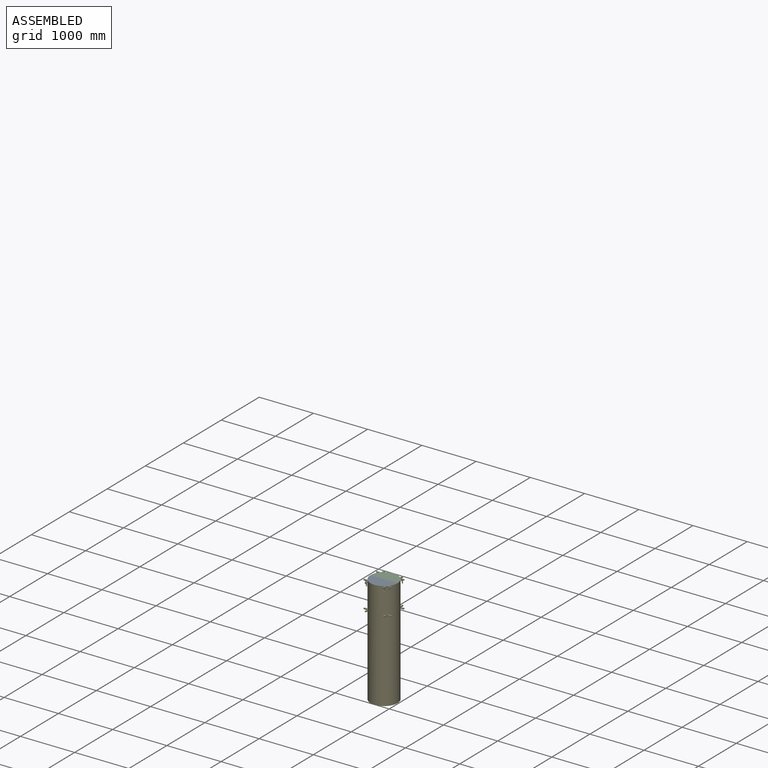
[diagram: assembled view]
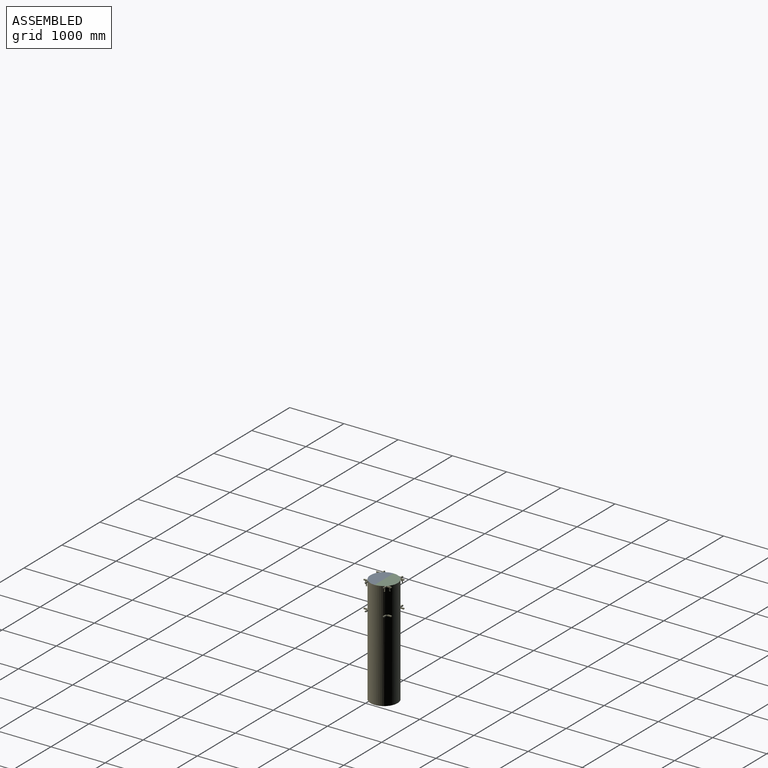
[diagram: assembled view, second angle]
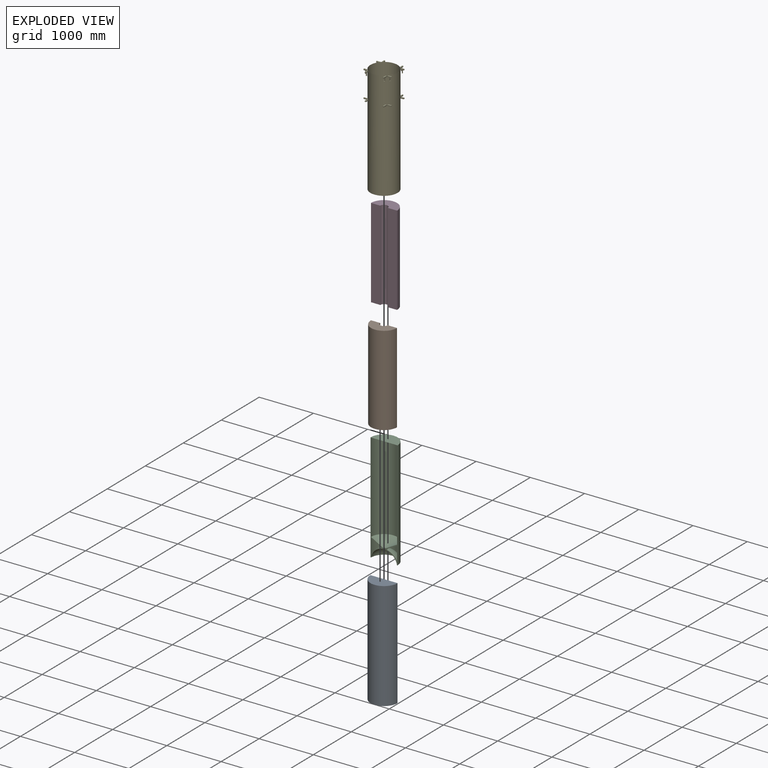
[diagram: exploded view]
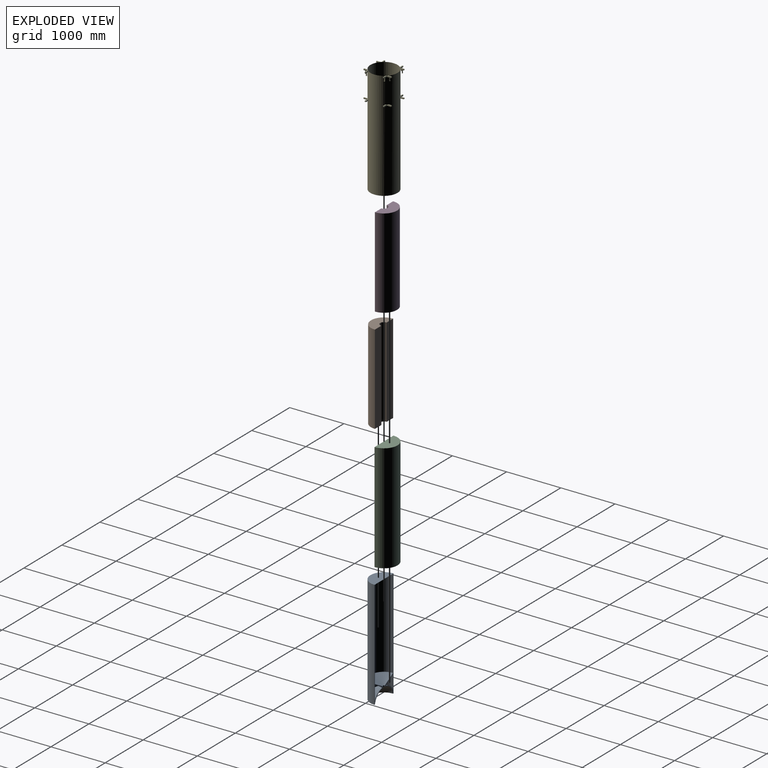
[diagram: exploded view, second angle]
ASSEMBLY  parts=5 mates=5
PART A: 13 faces, bbox 499x249.5x2000 mm
  f0: plane 2000x499mm, normal (0,-1,0), area 54441.9mm2, adj f1,f2,f3,f4,f5,f6,f7,f8
  f1: plane 499x249.5mm, normal (0,0,-1), area 7304.6mm2, adj f0,f4,f8
  f2: plane 499x249.5mm, normal (0,0,1), area 97782.5mm2, adj f0,f8
  f3: cylinder r=20mm len=40mm, axis (0,0,1), area 1256.6mm2, adj f0,f4,f5
  f4: sphere r=244mm, area 152680.3mm2, adj f0,f1,f3
  f5: cone r=20mm half-angle=60.4deg, axis (0,0,1), area 103339.9mm2, adj f0,f3,f6
  f6: cylinder r=240mm len=1654.82mm, axis (0,0,-1), area 1247705.7mm2, adj f0,f5,f7
  f7: plane 480x240mm, normal (0,0,-1), area 90477.9mm2, adj f0,f6
  f8: cylinder r=249.5mm len=2000mm, axis (0,0,1), area 1567654.7mm2, adj f0,f1,f2
  f9: cone r=52.51mm half-angle=59.8deg, axis (0,0,1), area 99633.5mm2, adj f0,f10,f12
  f10: cylinder r=52.51mm len=105.01mm, axis (0,0,1), area 1951.3mm2, adj f0,f9,f11
  f11: revolved ~480x240mm, area 130208.8mm2, adj f0,f10,f12
  f12: cylinder r=240mm len=480mm, axis (0,0,1), area 211115mm2, adj f0,f9,f11
PART B: 6 faces, bbox 480x240x1655 mm
  f0: plane 1655x170mm, normal (0,1,0), area 281350mm2, adj f2,f3,f4,f5
  f1: plane 1655x170mm, normal (0,1,0), area 281350mm2, adj f2,f3,f4,f5
  f2: cylinder r=240mm len=1655mm, axis (0,0,1), area 1247840.6mm2, adj f0,f1,f3,f4
  f3: plane 480x240mm, normal (0,0,-1), area 82781mm2, adj f0,f1,f2,f5
  f4: plane 480x240mm, normal (0,0,1), area 82781mm2, adj f0,f1,f2,f5
  f5: cylinder r=70mm len=1655mm, axis (0,0,1), area 363953.5mm2, adj f0,f1,f3,f4
PART C: same geometry as A
PART D: 6 faces, bbox 480x240x1655 mm
  f0: plane 1655x170mm, normal (0,-1,0), area 281350mm2, adj f2,f3,f4,f5
  f1: plane 1655x170mm, normal (0,-1,0), area 281350mm2, adj f2,f3,f4,f5
  f2: cylinder r=240mm len=1655mm, axis (0,0,1), area 1247840.6mm2, adj f0,f1,f3,f4
  f3: plane 480x240mm, normal (0,0,-1), area 82781mm2, adj f0,f1,f2,f5
  f4: plane 480x240mm, normal (0,0,1), area 82781mm2, adj f0,f1,f2,f5
  f5: cylinder r=70mm len=1655mm, axis (0,0,1), area 363953.5mm2, adj f0,f1,f3,f4
PART E: 180 faces, bbox 510x510x2000 mm
  f0: plane 30x4mm, normal (0,0,-1), area 120mm2, adj f27,f83,f126,f127
  f1: plane 30x4mm, normal (0,0,-1), area 120mm2, adj f27,f53,f124,f127
  f2: plane 30x4mm, normal (0,0,-1), area 120mm2, adj f32,f77,f114,f115
  f3: plane 30x4mm, normal (0,0,-1), area 120mm2, adj f32,f74,f113,f115
  f4: plane 43.22x20mm, normal (0,0,-1), area 678.4mm2, adj f46,f49,f87,f173
  f5: plane 30x4mm, normal (0,0,-1), area 120mm2, adj f33,f46,f109,f111
  f6: plane 30x4mm, normal (0,0,-1), area 120mm2, adj f84,f90,f130,f131
  f7: plane 30x4mm, normal (0,0,-1), area 120mm2, adj f70,f90,f129,f131
  f8: plane 30x4mm, normal (0,0,-1), area 120mm2, adj f39,f81,f97,f99
  f9: plane 30x4mm, normal (0,0,-1), area 120mm2, adj f39,f51,f98,f99
  f10: plane 30x4mm, normal (0,0,-1), area 120mm2, adj f20,f86,f148,f151
  f11: plane 30x4mm, normal (0,0,-1), area 120mm2, adj f20,f57,f150,f151
  f12: plane 30x4mm, normal (0,0,-1), area 120mm2, adj f85,f89,f141,f143
  f13: plane 30x4mm, normal (0,0,-1), area 120mm2, adj f55,f89,f142,f143
  f14: plane 30x4mm, normal (0,0,-1), area 120mm2, adj f40,f80,f94,f95
  f15: plane 30x4mm, normal (0,0,-1), area 120mm2, adj f40,f72,f93,f95
  f16: plane 43.22x20mm, normal (0,0,-1), area 678.4mm2, adj f55,f85,f87,f161
  f17: plane 78.22x20mm, normal (0,0,-1), area 1018.4mm2, adj f21,f47,f56,f87,f144,f146,f147
  f18: plane 78.22x20mm, normal (0,0,-1), area 1018.4mm2, adj f19,f48,f58,f87,f152,f154,f155
  f19: plane 20x20mm, normal (0,1,0), area 223.5mm2, adj f18,f48,f58,f60,f152,f153,f154
  f20: plane 20x20mm, normal (0,1,0), area 223.5mm2, adj f10,f11,f57,f61,f86,f148,f149,f150
  f21: plane 20x20mm, normal (0,1,0), area 223.5mm2, adj f17,f47,f56,f64,f144,f145,f146
  f22: plane 43.22x20mm, normal (0,0,-1), area 678.4mm2, adj f53,f83,f87,f179
  f23: plane 78.22x20mm, normal (0,0,-1), area 1018.4mm2, adj f26,f41,f69,f87,f132,f134,f135
  f24: plane 78.22x20mm, normal (0,0,-1), area 1018.4mm2, adj f25,f42,f54,f87,f136,f138,f139
  f25: plane 20x20mm, normal (-1,0,0), area 223.5mm2, adj f24,f42,f54,f63,f136,f137,f138
  f26: plane 20x20mm, normal (-1,0,0), area 223.5mm2, adj f23,f41,f59,f69,f132,f133,f134
  f27: plane 20x20mm, normal (-1,0,0), area 223.5mm2, adj f0,f1,f53,f61,f83,f124,f125,f126
  f28: plane 78.22x20mm, normal (0,0,-1), area 1018.4mm2, adj f31,f45,f50,f87,f117,f118,f119
  f29: plane 78.22x20mm, normal (0,0,-1), area 1018.4mm2, adj f30,f73,f78,f87,f121,f122,f123
  f30: plane 20x20mm, normal (1,0,0), area 223.5mm2, adj f29,f67,f73,f78,f120,f121,f122
  f31: plane 20x20mm, normal (1,0,0), area 223.5mm2, adj f28,f45,f50,f66,f116,f117,f118
  f32: plane 20x20mm, normal (1,0,0), area 223.5mm2, adj f2,f3,f61,f74,f77,f112,f113,f114
  f33: plane 20x20mm, normal (1,0,0), area 223.5mm2, adj f5,f46,f49,f61,f75,f108,f109,f110
  f34: plane 43.22x20mm, normal (0,0,-1), area 678.4mm2, adj f51,f81,f87,f167
  f35: plane 78.22x20mm, normal (0,0,-1), area 1018.4mm2, adj f38,f43,f52,f87,f101,f102,f103
  f36: plane 78.22x20mm, normal (0,0,-1), area 1018.5mm2, adj f37,f44,f71,f87,f105,f106,f107
  f37: plane 20x20mm, normal (0,-1,0), area 223.5mm2, adj f36,f44,f68,f71,f104,f105,f106
  f38: plane 20x20mm, normal (0,-1,0), area 223.5mm2, adj f35,f43,f52,f82,f100,f101,f102
  f39: plane 20x20mm, normal (0,-1,0), area 223.5mm2, adj f8,f9,f51,f61,f81,f96,f97,f98
  f40: plane 20x20mm, normal (0,-1,0), area 223.5mm2, adj f14,f15,f61,f72,f80,f92,f93,f94
  f41: plane 60.27x20mm, normal (0,-1,0), area 1205.3mm2, adj f23,f26,f59,f87
  f42: plane 60.27x20mm, normal (0,1,0), area 1205.3mm2, adj f24,f25,f63,f87
  f43: plane 60.27x20mm, normal (-1,0,0), area 1205.3mm2, adj f35,f38,f82,f87
  f44: plane 60.27x20mm, normal (1,0,0), area 1205.3mm2, adj f36,f37,f68,f87
  f45: plane 60.27x20mm, normal (0,-1,0), area 1205.3mm2, adj f28,f31,f66,f87
  f46: plane 75x60.27mm, normal (0,-1,0), area 1495.3mm2, adj f4,f5,f33,f61,f87,f111,f171,f172
  f47: plane 60.27x20mm, normal (1,0,0), area 1205.3mm2, adj f17,f21,f64,f87
  f48: plane 60.27x20mm, normal (-1,0,0), area 1205.3mm2, adj f18,f19,f60,f87
  f49: plane 78.22x75mm, normal (0,1,0), area 1854.5mm2, adj f4,f33,f57,f61,f75,f111,f171,f172
  f50: plane 78.22x20mm, normal (0,1,0), area 1564.5mm2, adj f28,f31,f58,f66
  f51: plane 78.22x75mm, normal (1,0,0), area 1854.5mm2, adj f9,f34,f39,f61,f74,f99,f165,f166
  f52: plane 78.22x20mm, normal (1,0,0), area 1564.5mm2, adj f35,f38,f73,f82
  f53: plane 78.22x75mm, normal (0,-1,0), area 1854.5mm2, adj f1,f22,f27,f61,f72,f127,f177,f178
  f54: plane 78.22x20mm, normal (0,-1,0), area 1564.5mm2, adj f24,f25,f63,f71
  f55: plane 78.22x75mm, normal (-1,0,0), area 1854.5mm2, adj f13,f16,f61,f70,f89,f143,f159,f160
  f56: plane 78.22x20mm, normal (-1,0,0), area 1564.5mm2, adj f17,f21,f64,f69
  f57: plane 78.22x75mm, normal (1,0,0), area 1854.5mm2, adj f11,f20,f49,f61,f65,f151,f162,f163
  f58: plane 78.22x20mm, normal (1,0,0), area 1564.5mm2, adj f18,f19,f50,f60
  f59: plane 78.22x20mm, normal (0,0,1), area 1378.4mm2, adj f26,f41,f69,f87
  f60: plane 78.22x20mm, normal (0,0,1), area 1378.4mm2, adj f19,f48,f58,f87
  f61: plane 510x510mm, normal (0,0,1), area 11812mm2, adj f20,f27,f32,f33,f39,f40,f46,f49
  f62: plane 43.22x20mm, normal (0,0,-1), area 678.4mm2, adj f70,f84,f87,f170
  f63: plane 78.22x20mm, normal (0,0,1), area 1378.4mm2, adj f25,f42,f54,f87
  f64: plane 78.22x20mm, normal (0,0,1), area 1378.4mm2, adj f21,f47,f56,f87
  f65: plane 43.22x20mm, normal (0,0,-1), area 678.4mm2, adj f57,f86,f87,f164
  f66: plane 78.22x20mm, normal (0,0,1), area 1378.4mm2, adj f31,f45,f50,f87
  f67: plane 78.22x20mm, normal (0,0,1), area 1378.4mm2, adj f30,f73,f78,f87
  f68: plane 78.22x20mm, normal (0,0,1), area 1378.4mm2, adj f37,f44,f71,f87
  f69: plane 78.22x20mm, normal (0,1,0), area 1564.5mm2, adj f23,f26,f56,f59
  f70: plane 78.22x75mm, normal (0,1,0), area 1854.5mm2, adj f7,f55,f61,f62,f90,f131,f168,f169
  f71: plane 78.22x20mm, normal (-1,0,0), area 1564.5mm2, adj f36,f37,f54,f68
  f72: plane 78.22x75mm, normal (-1,0,0), area 1854.5mm2, adj f15,f40,f53,f61,f79,f95,f156,f157
  f73: plane 78.22x20mm, normal (0,-1,0), area 1564.5mm2, adj f29,f30,f52,f67
  f74: plane 78.22x75mm, normal (0,-1,0), area 1854.5mm2, adj f3,f32,f51,f61,f76,f115,f174,f175
  f75: plane 30x4mm, normal (0,0,-1), area 120mm2, adj f33,f49,f110,f111
  f76: plane 43.22x20mm, normal (0,0,-1), area 678.4mm2, adj f74,f77,f87,f176
  f77: plane 75x60.27mm, normal (0,1,0), area 1495.3mm2, adj f2,f32,f61,f76,f87,f115,f174,f175
  f78: plane 60.27x20mm, normal (0,1,0), area 1205.3mm2, adj f29,f30,f67,f87
  f79: plane 43.22x20mm, normal (0,0,-1), area 678.4mm2, adj f72,f80,f87,f158
  f80: plane 75x60.27mm, normal (1,0,0), area 1495.3mm2, adj f14,f40,f61,f79,f87,f95,f156,f157
  f81: plane 75x60.27mm, normal (-1,0,0), area 1495.3mm2, adj f8,f34,f39,f61,f87,f99,f165,f166
  f82: plane 78.22x20mm, normal (0,0,1), area 1378.4mm2, adj f38,f43,f52,f87
  f83: plane 75x60.27mm, normal (0,1,0), area 1495.3mm2, adj f0,f22,f27,f61,f87,f127,f177,f178
  f84: plane 75x60.27mm, normal (0,-1,0), area 1495.3mm2, adj f6,f61,f62,f87,f90,f131,f168,f169
  f85: plane 75x60.27mm, normal (1,0,0), area 1495.3mm2, adj f12,f16,f61,f87,f89,f143,f159,f160
  f86: plane 75x60.27mm, normal (-1,0,0), area 1495.3mm2, adj f10,f20,f61,f65,f87,f151,f162,f163
  f87: cylinder r=250mm len=2000mm, axis (0,0,-1), area 3132987.5mm2, adj f4,f16,f17,f18,f22,f23,f24,f28
  f88: plane 500x500mm, normal (0,0,-1), area 784.6mm2, adj f87,f91
  f89: plane 20x20mm, normal (0,1,0), area 223.5mm2, adj f12,f13,f55,f61,f85,f140,f141,f142
  f90: plane 20x20mm, normal (-1,0,0), area 223.5mm2, adj f6,f7,f61,f70,f84,f128,f129,f130
  f91: cylinder r=249.5mm len=2000mm, axis (0,0,1), area 3135309.5mm2, adj f61,f88
  f92: cylinder r=6mm len=30mm, axis (0,-1,0), area 565.5mm2, adj f40,f93,f94,f95
  f93: plane 30x10mm, normal (1,0,0), area 300mm2, adj f15,f40,f92,f95
  f94: plane 30x10mm, normal (-1,0,0), area 300mm2, adj f14,f40,f92,f95
  f95: plane 66x20mm, normal (0,-1,0), area 1176.5mm2, adj f14,f15,f72,f80,f92,f93,f94,f157
  f96: cylinder r=6mm len=30mm, axis (0,-1,0), area 565.5mm2, adj f39,f97,f98,f99
  f97: plane 30x10mm, normal (1,0,0), area 300mm2, adj f8,f39,f96,f99
  f98: plane 30x10mm, normal (-1,0,0), area 300mm2, adj f9,f39,f96,f99
  f99: plane 66x20mm, normal (0,-1,0), area 1176.5mm2, adj f8,f9,f51,f81,f96,f97,f98,f165
  f100: cylinder r=6mm len=30mm, axis (0,-1,0), area 565.5mm2, adj f38,f101,f102,f103
  f101: plane 30x10mm, normal (1,0,0), area 300mm2, adj f35,f38,f100,f103
  f102: plane 30x10mm, normal (-1,0,0), area 300mm2, adj f35,f38,f100,f103
  f103: plane 16x12mm, normal (0,-1,0), area 176.5mm2, adj f35,f100,f101,f102
  f104: cylinder r=6mm len=30mm, axis (0,-1,0), area 572mm2, adj f37,f105,f106,f107
  f105: plane 30x9.89mm, normal (1,0,0), area 296.8mm2, adj f36,f37,f104,f107
  f106: plane 30x9.89mm, normal (-1,0,0), area 296.8mm2, adj f36,f37,f104,f107
  f107: plane 16x12mm, normal (0,-1,0), area 176.5mm2, adj f36,f104,f105,f106
  f108: cylinder r=6mm len=30mm, axis (1,0,0), area 565.5mm2, adj f33,f109,f110,f111
  f109: plane 30x10mm, normal (0,1,0), area 300mm2, adj f5,f33,f108,f111
  f110: plane 30x10mm, normal (0,-1,0), area 300mm2, adj f33,f75,f108,f111
  f111: plane 66x20mm, normal (1,0,0), area 1176.5mm2, adj f5,f46,f49,f75,f108,f109,f110,f171
  f112: cylinder r=6mm len=30mm, axis (1,0,0), area 565.5mm2, adj f32,f113,f114,f115
  f113: plane 30x10mm, normal (0,1,0), area 300mm2, adj f3,f32,f112,f115
  f114: plane 30x10mm, normal (0,-1,0), area 300mm2, adj f2,f32,f112,f115
  f115: plane 66x20mm, normal (1,0,0), area 1176.5mm2, adj f2,f3,f74,f77,f112,f113,f114,f175
  f116: cylinder r=6mm len=30mm, axis (1,0,0), area 565.5mm2, adj f31,f117,f118,f119
  f117: plane 30x10mm, normal (0,1,0), area 300mm2, adj f28,f31,f116,f119
  f118: plane 30x10mm, normal (0,-1,0), area 300mm2, adj f28,f31,f116,f119
  f119: plane 16x12mm, normal (1,0,0), area 176.5mm2, adj f28,f116,f117,f118
  f120: cylinder r=6mm len=30mm, axis (1,0,0), area 565.5mm2, adj f30,f121,f122,f123
  f121: plane 30x10mm, normal (0,1,0), area 300mm2, adj f29,f30,f120,f123
  f122: plane 30x10mm, normal (0,-1,0), area 300mm2, adj f29,f30,f120,f123
  f123: plane 16x12mm, normal (1,0,0), area 176.5mm2, adj f29,f120,f121,f122
  f124: plane 30x10mm, normal (0,1,0), area 300mm2, adj f1,f27,f125,f127
  f125: cylinder r=6mm len=30mm, axis (-1,0,0), area 565.5mm2, adj f27,f124,f126,f127
  f126: plane 30x10mm, normal (0,-1,0), area 300mm2, adj f0,f27,f125,f127
  f127: plane 66x20mm, normal (-1,0,0), area 1176.5mm2, adj f0,f1,f53,f83,f124,f125,f126,f177
  f128: cylinder r=6mm len=30mm, axis (-1,0,0), area 565.5mm2, adj f90,f129,f130,f131
  f129: plane 30x10mm, normal (0,-1,0), area 300mm2, adj f7,f90,f128,f131
  f130: plane 30x10mm, normal (0,1,0), area 300mm2, adj f6,f90,f128,f131
  f131: plane 66x20mm, normal (-1,0,0), area 1176.5mm2, adj f6,f7,f70,f84,f128,f129,f130,f169
  f132: plane 30x10mm, normal (0,1,0), area 300mm2, adj f23,f26,f133,f135
  f133: cylinder r=6mm len=30mm, axis (-1,0,0), area 565.5mm2, adj f26,f132,f134,f135
  f134: plane 30x10mm, normal (0,-1,0), area 300mm2, adj f23,f26,f133,f135
  f135: plane 16x12mm, normal (-1,0,0), area 176.5mm2, adj f23,f132,f133,f134
  f136: plane 30x10mm, normal (0,1,0), area 300mm2, adj f24,f25,f137,f139
  f137: cylinder r=6mm len=30mm, axis (-1,0,0), area 565.5mm2, adj f25,f136,f138,f139
  f138: plane 30x10mm, normal (0,-1,0), area 300mm2, adj f24,f25,f137,f139
  f139: plane 16x12mm, normal (-1,0,0), area 176.5mm2, adj f24,f136,f137,f138
  f140: cylinder r=6mm len=30mm, axis (0,1,0), area 565.5mm2, adj f89,f141,f142,f143
  f141: plane 30x10mm, normal (-1,0,0), area 300mm2, adj f12,f89,f140,f143
  f142: plane 30x10mm, normal (1,0,0), area 300mm2, adj f13,f89,f140,f143
  f143: plane 66x20mm, normal (0,1,0), area 1176.5mm2, adj f12,f13,f55,f85,f140,f141,f142,f159
  f144: plane 30x10mm, normal (1,0,0), area 300mm2, adj f17,f21,f145,f147
  f145: cylinder r=6mm len=30mm, axis (0,1,0), area 565.5mm2, adj f21,f144,f146,f147
  f146: plane 30x10mm, normal (-1,0,0), area 300mm2, adj f17,f21,f145,f147
  f147: plane 16x12mm, normal (0,1,0), area 176.5mm2, adj f17,f144,f145,f146
  f148: plane 30x10mm, normal (1,0,0), area 300mm2, adj f10,f20,f149,f151
  f149: cylinder r=6mm len=30mm, axis (0,1,0), area 565.5mm2, adj f20,f148,f150,f151
  f150: plane 30x10mm, normal (-1,0,0), area 300mm2, adj f11,f20,f149,f151
  f151: plane 66x20mm, normal (0,1,0), area 1176.5mm2, adj f10,f11,f57,f86,f148,f149,f150,f163
  f152: plane 30x10mm, normal (1,0,0), area 300mm2, adj f18,f19,f153,f155
  f153: cylinder r=6mm len=30mm, axis (0,1,0), area 565.5mm2, adj f19,f152,f154,f155
  f154: plane 30x10mm, normal (-1,0,0), area 300mm2, adj f18,f19,f153,f155
  f155: plane 16x12mm, normal (0,1,0), area 176.5mm2, adj f18,f152,f153,f154
  f156: plane 20x11mm, normal (0,0,-1), area 220mm2, adj f72,f80,f157,f158
  f157: plane 20x6mm, normal (0,-0.64,0.77), area 156.2mm2, adj f72,f80,f95,f156
  f158: plane 55x20mm, normal (0,1,0), area 1100mm2, adj f72,f79,f80,f156
  f159: plane 20x6mm, normal (0,0.64,0.77), area 156.2mm2, adj f55,f85,f143,f160
  f160: plane 20x11mm, normal (0,0,-1), area 220mm2, adj f55,f85,f159,f161
  f161: plane 55x20mm, normal (0,-1,0), area 1100mm2, adj f16,f55,f85,f160
  f162: plane 20x11mm, normal (0,0,-1), area 220mm2, adj f57,f86,f163,f164
  f163: plane 20x6mm, normal (0,0.64,0.77), area 156.2mm2, adj f57,f86,f151,f162
  f164: plane 55x20mm, normal (0,-1,0), area 1100mm2, adj f57,f65,f86,f162
  f165: plane 20x6mm, normal (0,-0.64,0.77), area 156.2mm2, adj f51,f81,f99,f166
  f166: plane 20x11mm, normal (0,0,-1), area 220mm2, adj f51,f81,f165,f167
  f167: plane 55x20mm, normal (0,1,0), area 1100mm2, adj f34,f51,f81,f166
  f168: plane 20x11mm, normal (0,0,-1), area 220mm2, adj f70,f84,f169,f170
  f169: plane 20x6mm, normal (-0.64,0,0.77), area 156.2mm2, adj f70,f84,f131,f168
  f170: plane 55x20mm, normal (1,0,0), area 1100mm2, adj f62,f70,f84,f168
  f171: plane 20x6mm, normal (0.64,0,0.77), area 156.2mm2, adj f46,f49,f111,f172
  f172: plane 20x11mm, normal (0,0,-1), area 220mm2, adj f46,f49,f171,f173
  f173: plane 55x20mm, normal (-1,0,0), area 1100mm2, adj f4,f46,f49,f172
  f174: plane 20x11mm, normal (0,0,-1), area 220mm2, adj f74,f77,f175,f176
  f175: plane 20x6mm, normal (0.64,0,0.77), area 156.2mm2, adj f74,f77,f115,f174
  f176: plane 55x20mm, normal (-1,0,0), area 1100mm2, adj f74,f76,f77,f174
  f177: plane 20x6mm, normal (-0.64,0,0.77), area 156.2mm2, adj f53,f83,f127,f178
  f178: plane 20x11mm, normal (0,0,-1), area 220mm2, adj f53,f83,f177,f179
  f179: plane 55x20mm, normal (1,0,0), area 1100mm2, adj f22,f53,f83,f178
PLACE A rot(axis=(0,0,1),180deg) t=(-225.18,184.6,-340.96)mm
PLACE B t=(-225.18,184.6,-341.96)mm
PLACE C t=(-225.18,184.6,-340.96)mm fixed
PLACE D t=(-225.18,184.6,-341.96)mm
PLACE E t=(-225.18,184.6,-340.96)mm
MATE fastened E.f91 <-> A.f5  axis (0,0,1) through (-225.18,184.6,-340.96)mm
MATE fastened C.f5 <-> A.f5  axis (0,0,1) through (-225.18,184.6,1659.04)mm
MATE fastened D.f5 <-> C.f6  axis (0,0,1) through (-225.18,184.6,1657.04)mm
MATE fastened A.f5 <-> C.f5  axis (0,0,1) through (-225.18,184.6,1659.04)mm
MATE fastened D.f5 <-> B.f2  axis (0,0,1) through (-225.18,184.6,1657.04)mm
